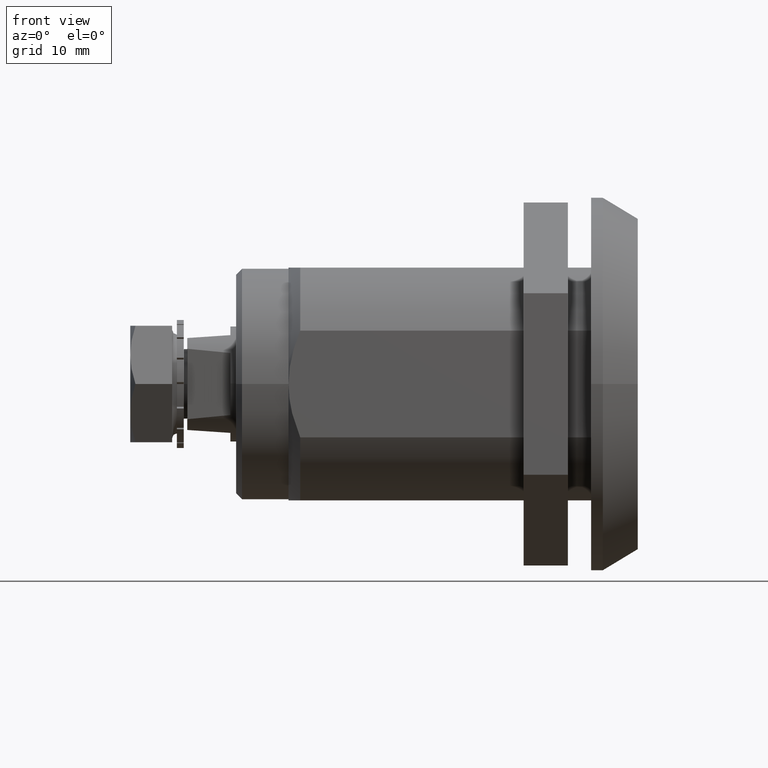
[diagram: clean part render]
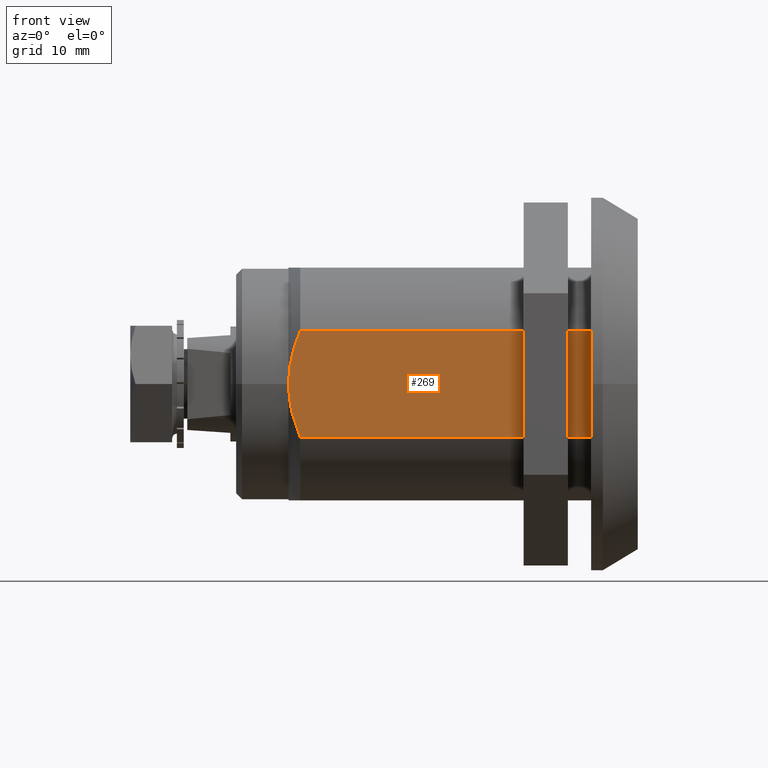
[diagram: same view with one face highlighted and labeled with its STEP entity id]
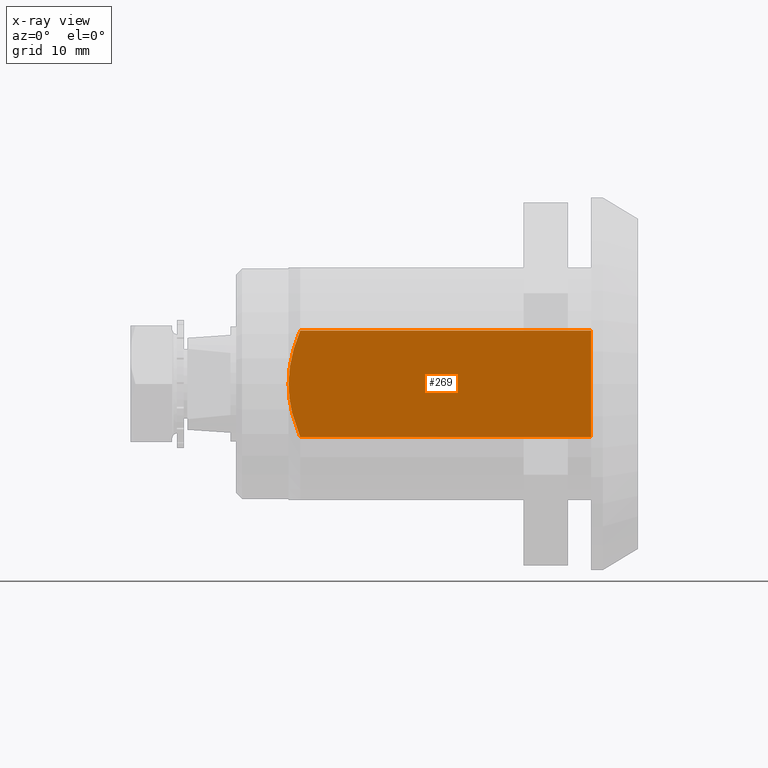
[diagram: x-ray of the same camera — body ghosted, the highlighted face saturated]
A machine part, front view. The second image highlights one B-rep face of the part: STEP entity #269.
The next image is the same camera in x-ray: the body ghosted, the highlighted face saturated — about 0% of this face is hidden behind the body in this view.
In plain terms, the highlighted planar face has unit normal (0, 1, 0).
Its self-contained STEP definition (entity closure, byte-faithful):
#269=ADVANCED_FACE('',(#738),#737,.F.);
#737=PLANE('',#4525);
#738=FACE_OUTER_BOUND('',#4526,.T.);
#4522=CARTESIAN_POINT('',(-5.49909083395E+00,-1.00000000000E+01,-3.40000000000E+00));
#4523=DIRECTION('',(0.00000000000E+00,1.00000000000E+00,0.00000000000E+00));
#4524=DIRECTION('',(1.00000000000E+00,-0.00000000000E+00,0.00000000000E+00));
#4525=AXIS2_PLACEMENT_3D('',#4522,#4523,#4524);
#4526=EDGE_LOOP('',(#8517,#8518,#8519,#8520,#8521));
#8517=ORIENTED_EDGE('',*,*,#10492,.F.);
#8518=ORIENTED_EDGE('',*,*,#10497,.F.);
#8519=ORIENTED_EDGE('',*,*,#10498,.F.);
#8520=ORIENTED_EDGE('',*,*,#10435,.F.);
#8521=ORIENTED_EDGE('',*,*,#10499,.T.);
#10435=EDGE_CURVE('',#11559,#11566,#11567,.T.);
#10492=EDGE_CURVE('',#11955,#11962,#11963,.T.);
#10497=EDGE_CURVE('',#11995,#11955,#11996,.T.);
#10498=EDGE_CURVE('',#11566,#11995,#12002,.T.);
#10499=EDGE_CURVE('',#11559,#11962,#12008,.T.);
#11559=VERTEX_POINT('',#18114);
#11566=VERTEX_POINT('',#18119);
#11567=LINE('',#18120,#18121);
#11955=VERTEX_POINT('',#18351);
#11962=VERTEX_POINT('',#18356);
#11963=(BOUNDED_CURVE() B_SPLINE_CURVE(3,(#18357,#18358,#18359,#18360,#18361,#18362,#18363),.UNSPECIFIED.,.F.,.F.) B_SPLINE_CURVE_WITH_KNOTS((4,1,1,1,4),(0.00000000000E+00,2.50000000000E-01,5.00000000000E-01,7.50000000000E-01,1.00000000000E+00),.UNSPECIFIED.) CURVE() GEOMETRIC_REPRESENTATION_ITEM() RATIONAL_B_SPLINE_CURVE((1.00000000000E+00,1.00000000000E+00,1.00000000000E+00,1.00000000000E+00,1.00000000000E+00,1.00000000000E+00,1.00000000000E+00)) REPRESENTATION_ITEM('') );
#11995=VERTEX_POINT('',#18385);
#11996=(BOUNDED_CURVE() B_SPLINE_CURVE(3,(#18386,#18387,#18388,#18389,#18390,#18391,#18392),.UNSPECIFIED.,.F.,.F.) B_SPLINE_CURVE_WITH_KNOTS((4,1,1,1,4),(0.00000000000E+00,2.50000000000E-01,5.00000000000E-01,7.50000000000E-01,1.00000000000E+00),.UNSPECIFIED.) CURVE() GEOMETRIC_REPRESENTATION_ITEM() RATIONAL_B_SPLINE_CURVE((1.00000000000E+00,1.00000000000E+00,1.00000000000E+00,1.00000000000E+00,1.00000000000E+00,1.00000000000E+00,1.00000000000E+00)) REPRESENTATION_ITEM('') );
#12002=LINE('',#18393,#18394);
#12008=LINE('',#18396,#18397);
#18114=CARTESIAN_POINT('',(-4.58257569496E+00,-1.00000000000E+01,-6.00000000000E+00));
#18119=CARTESIAN_POINT('',(4.58257569496E+00,-1.00000000000E+01,-6.00000000000E+00));
#18120=CARTESIAN_POINT('',(-4.58257569496E+00,-1.00000000000E+01,-6.00000000000E+00));
#18121=VECTOR('',#18122,9.16515138991E+00);
#18122=DIRECTION('',(1.00000000000E+00,0.00000000000E+00,0.00000000000E+00));
#18351=CARTESIAN_POINT('',(0.00000000000E+00,-1.00000000000E+01,-3.20000000000E+01));
#18356=CARTESIAN_POINT('',(-4.58257569496E+00,-1.00000000000E+01,-3.10000000000E+01));
#18357=CARTESIAN_POINT('',(0.00000000000E+00,-1.00000000000E+01,-3.20000000000E+01));
#18358=CARTESIAN_POINT('',(-3.69548962583E-01,-1.00000000000E+01,-3.20000000000E+01));
#18359=CARTESIAN_POINT('',(-1.11253071450E+00,-1.00000000000E+01,-3.19587995924E+01));
#18360=CARTESIAN_POINT('',(-2.23367612824E+00,-1.00000000000E+01,-3.17732877850E+01));
#18361=CARTESIAN_POINT('',(-3.37643041599E+00,-1.00000000000E+01,-3.14647604869E+01));
#18362=CARTESIAN_POINT('',(-4.17562239647E+00,-1.00000000000E+01,-3.11695358450E+01));
#18363=CARTESIAN_POINT('',(-4.58257569496E+00,-1.00000000000E+01,-3.10000000000E+01));
#18385=CARTESIAN_POINT('',(4.58257569496E+00,-1.00000000000E+01,-3.10000000000E+01));
#18386=CARTESIAN_POINT('',(4.58257569496E+00,-1.00000000000E+01,-3.10000000000E+01));
#18387=CARTESIAN_POINT('',(4.17555657972E+00,-1.00000000000E+01,-3.11695632641E+01));
#18388=CARTESIAN_POINT('',(3.37626128839E+00,-1.00000000000E+01,-3.14648199601E+01));
#18389=CARTESIAN_POINT('',(2.23339546147E+00,-1.00000000000E+01,-3.17733499961E+01));
#18390=CARTESIAN_POINT('',(1.11233406260E+00,-1.00000000000E+01,-3.19588162307E+01));
#18391=CARTESIAN_POINT('',(3.69469384234E-01,-1.00000000000E+01,-3.20000000000E+01));
#18392=CARTESIAN_POINT('',(0.00000000000E+00,-1.00000000000E+01,-3.20000000000E+01));
#18393=CARTESIAN_POINT('',(4.58257569496E+00,-1.00000000000E+01,-6.00000000000E+00));
#18394=VECTOR('',#18395,2.50000000000E+01);
#18395=DIRECTION('',(0.00000000000E+00,0.00000000000E+00,-1.00000000000E+00));
#18396=CARTESIAN_POINT('',(-4.58257569496E+00,-1.00000000000E+01,-6.00000000000E+00));
#18397=VECTOR('',#18398,2.50000000000E+01);
#18398=DIRECTION('',(0.00000000000E+00,0.00000000000E+00,-1.00000000000E+00));